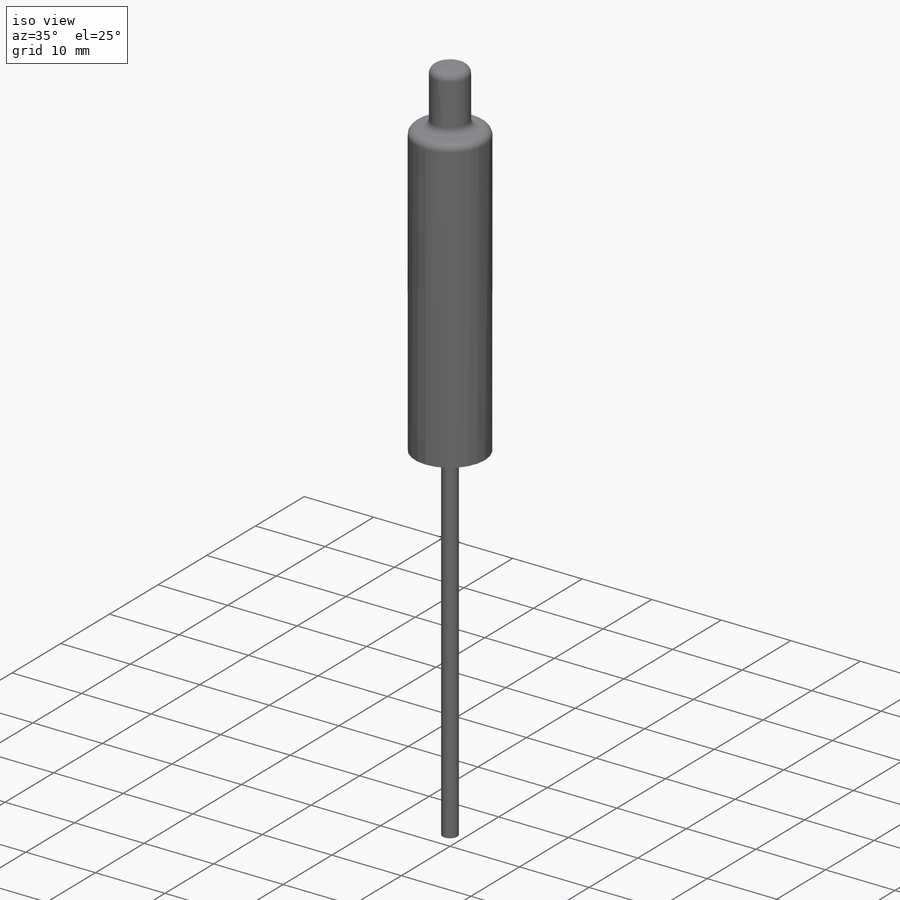
[diagram: iso view]
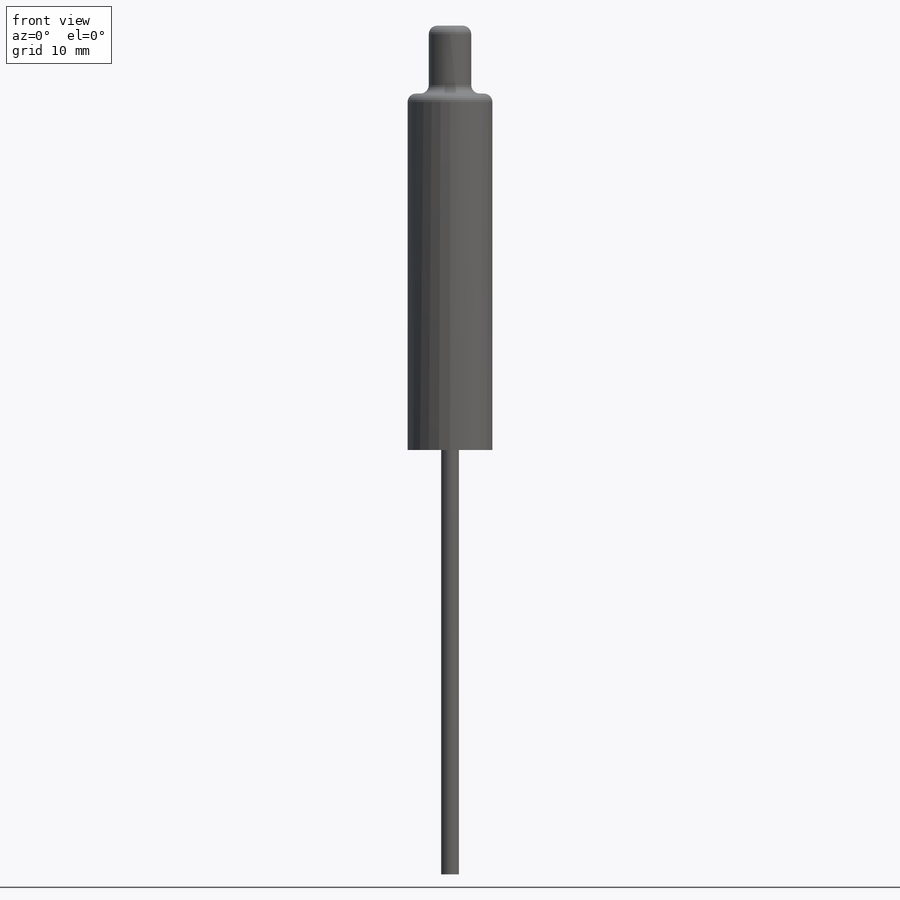
[diagram: front view]
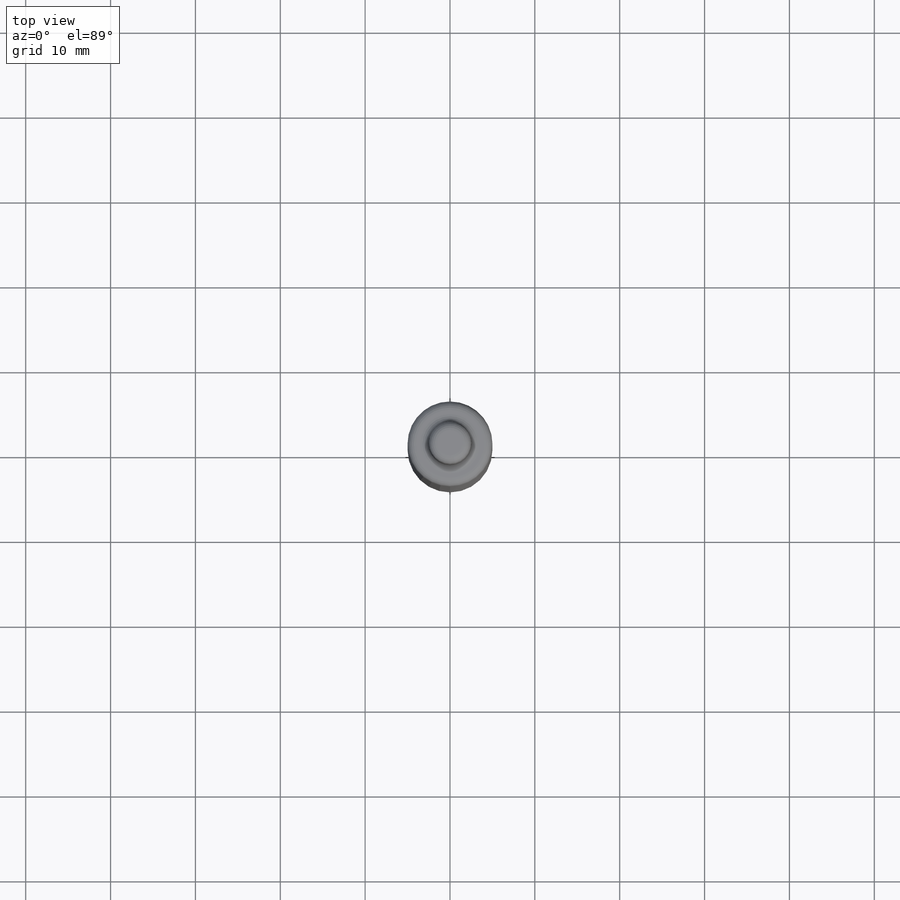
[diagram: top view]
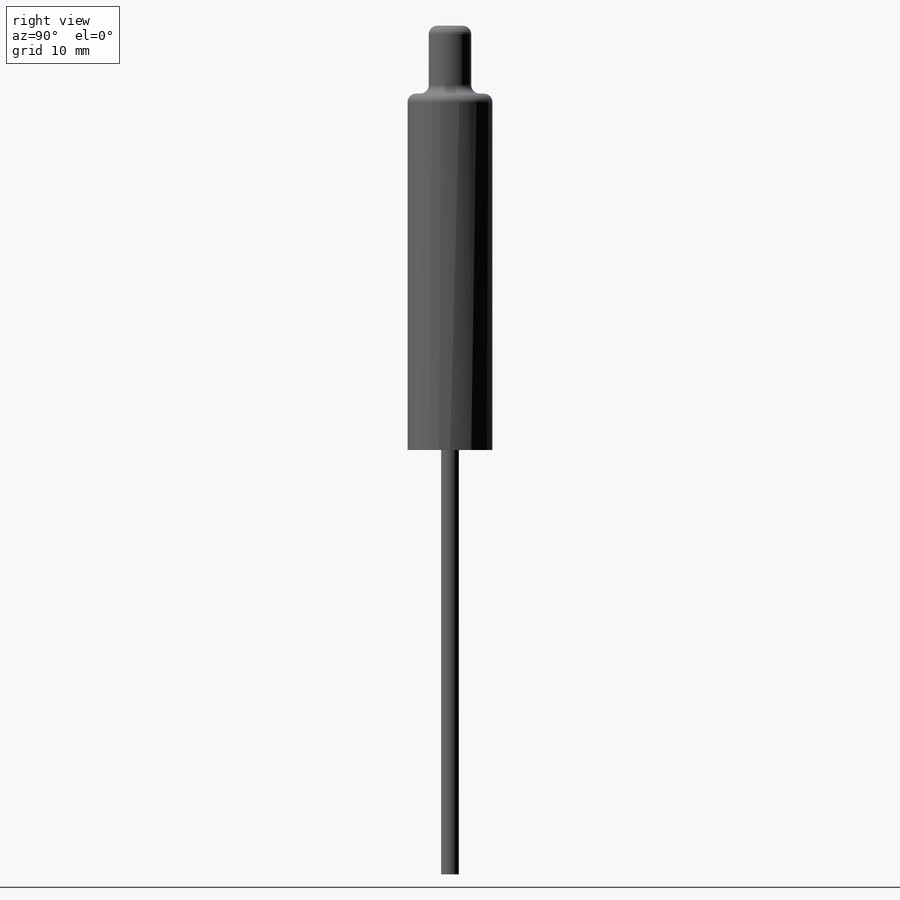
[diagram: right view]
SOLIDWORKS PART (.sldprt)
format: sldprt  version: not decoded by parser v0  size: 137,216 bytes
history: native  units: mm
features: plane x3, sketch x3, extrude x3, fillet x3, material x1 (+10 scaffold rows collapsed)
feature tree (23):
  scaffold x10  (default folders/planes/origin — collapsed)
  material  "Matériau <non spécifié>"
  plane  "Plan de face"
  plane  "Plan de dessus"
  plane  "Plan de droite"
  sketch  "Esquisse2"  dims[D1=2.1mm]
  extrude  "Boss.-Extru.1"  Depth=100mm
  sketch  "Esquisse3"  dims[D1=5.0mm]
  extrude  "Boss.-Extru.2"  Depth=8mm
  sketch  "Esquisse4"  dims[D1=10.0mm]
  extrude  "Boss.-Extru.3"  Depth=42mm
  fillet  "Congé4"  Radius=1mm
  fillet  "Congé5"  Radius=1mm
  fillet  "Congé6"  Radius=1mm
decode coverage: 9 of 9 modeling features carry decoded parameters
note: suppression state not decoded; provenance and decode notes live in map.json
